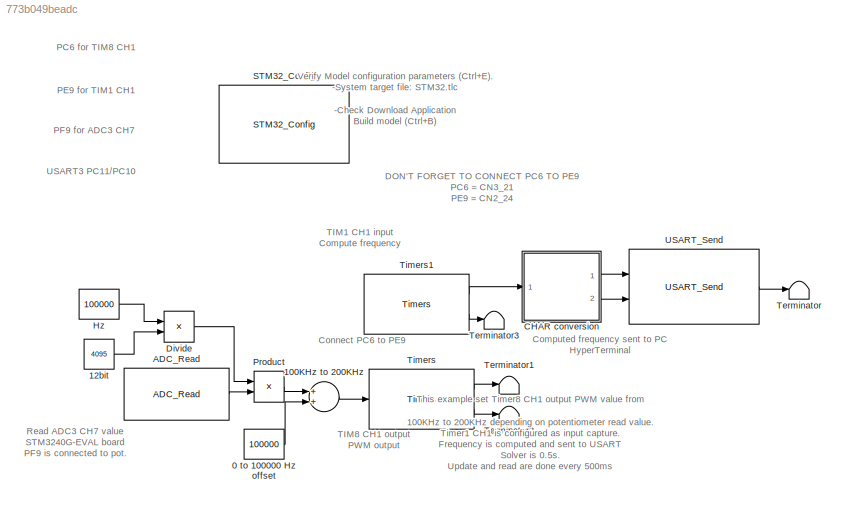
MODEL slx_773b049beadc
KIND model
CONFIG AbsTol = auto
CONFIG EnableMultiTasking = on
CONFIG FixedStep = 0.5
CONFIG MaxStep = auto
CONFIG MinStep = auto
CONFIG RelTol = 1e-3
CONFIG SampleTimeConstraint = Unconstrained
CONFIG Solver = FixedStepDiscrete
CONFIG SolverName = FixedStepDiscrete
CONFIG StartTime = 0.0
CONFIG StopTime = 10.0
BLOCK [Constant] 0 to 100000 Hz offset
  Value = 100000
BLOCK [Sum] 100KHz to 200KHz
  InputSameDT = off
  OutDataTypeStr = Inherit: Inherit via internal rule
  Ports = [2, 1]
  SaturateOnIntegerOverflow = off
BLOCK [Constant] 12bit
  OutDataTypeStr = single
  Value = 4095
BLOCK [Reference] ADC_Read  REF=ADC_Lib/ADC_Read
  Ports = [0, 1]
  SourceBlock = ADC_Lib/ADC_Read
  SourceProductName = Target Support Package - STM32 Adapter
  SourceType = ADC_Read
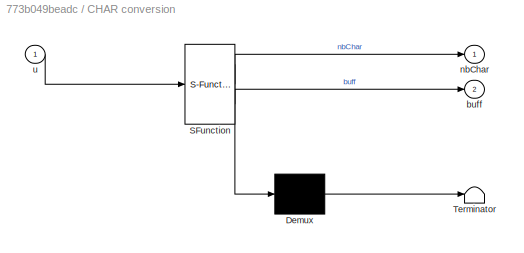
BLOCK [SubSystem] CHAR conversion
  ErrorFcn = Stateflow.Translate.translate
  PermitHierarchicalResolution = ExplicitOnly
  Ports = [1, 2]
  RequestExecContextInheritance = off
  SFBlockType = MATLAB Function
  TreatAsAtomicUnit = on
BLOCK [Demux] CHAR conversion/ Demux 
  Outputs = 1
  Ports = [1, 1]
BLOCK [S-Function] CHAR conversion/ SFunction 
  EnableBusSupport = on
  FunctionName = sf_sfun
  PortCounts = [1 3]
  Ports = [1, 3]
  SFcnIsStateOwnerBlock = off
  SFunctionDeploymentMode = off
  Tag = Stateflow S-Function Tim8PWM_Tim1IC 2
BLOCK [Terminator] CHAR conversion/ Terminator 
BLOCK [Outport] CHAR conversion/buff
  IconDisplay = Port number
  Port = 2
BLOCK [Outport] CHAR conversion/nbChar
  IconDisplay = Port number
BLOCK [Inport] CHAR conversion/u
  IconDisplay = Port number
BLOCK [Product] Divide
  InputSameDT = off
  Inputs = */
  OutDataTypeStr = Inherit: Inherit via internal rule
  Ports = [2, 1]
  RndMeth = Floor
  SaturateOnIntegerOverflow = off
BLOCK [Constant] Hz
  OutDataTypeStr = single
  Value = 100000
BLOCK [Product] Product
  InputSameDT = off
  OutDataTypeStr = Inherit: Inherit via internal rule
  Ports = [2, 1]
  SaturateOnIntegerOverflow = off
BLOCK [Reference] STM32_Config  REF=STM32_Config_Lib/STM32_Config
  Ports = []
  Priority = 0
  SourceBlock = STM32_Config_Lib/STM32_Config
  SourceProductName = Target Support Package - STM32 Adapter
  SourceType = STM32_Config
BLOCK [Terminator] Terminator
BLOCK [Terminator] Terminator1
BLOCK [Terminator] Terminator2
BLOCK [Terminator] Terminator3
BLOCK [Reference] Timers  REF=TIMERS_Lib/Timers
  Ports = [1, 2]
  SourceBlock = TIMERS_Lib/Timers
  SourceProductName = Target Support Package - STM32 Adapter
  SourceType = Timers
BLOCK [Reference] Timers1  REF=TIMERS_Lib/Timers
  Ports = [0, 2]
  SourceBlock = TIMERS_Lib/Timers
  SourceProductName = Target Support Package - STM32 Adapter
  SourceType = Timers
BLOCK [Reference] USART_Send  REF=USART_Lib/USART_Send
  Ports = [2, 1]
  SourceBlock = USART_Lib/USART_Send
  SourceProductName = Target Support Package - STM32 Adapter
  SourceType = USART_Send
ANNOTATION (root): Computed frequency sent to PC HyperTerminal
ANNOTATION (root): Connect PC6 to PE9
ANNOTATION (root): DON'T FORGET TO CONNECT PC6 TO PE9 PC6 = CN3_21 PE9 = CN2_24
ANNOTATION (root): PC6 for TIM8 CH1
ANNOTATION (root): PE9 for TIM1 CH1
ANNOTATION (root): PF9 for ADC3 CH7
ANNOTATION (root): Read ADC3 CH7 value STM3240G-EVAL board PF9 is connected to pot.
ANNOTATION (root): TIM1 CH1 input Compute frequency
ANNOTATION (root): TIM8 CH1 output PWM output
ANNOTATION (root): This example set Timer8 CH1 output PWM value from 100KHz to 200KHz depending on potentiometer read value. Timer1 CH1 is configured as input capture. Frequency is computed and sent to USART Solver is 0.5s. Update and read are done every 500ms
ANNOTATION (root): USART3 PC11/PC10
ANNOTATION (root): Verify Model configuration parameters (Ctrl+E). -System target file: STM32.tlc -Check Download Application Build model (Ctrl+B)
LINE 0 to 100000 Hz offset:1 -> 100KHz to 200KHz:2
LINE 100KHz to 200KHz:1 -> Timers:1
LINE 12bit:1 -> Divide:2
LINE ADC_Read:1 -> Product:2
LINE CHAR conversion:1 -> USART_Send:1
LINE CHAR conversion:2 -> USART_Send:2
LINE Divide:1 -> Product:1
LINE Hz:1 -> Divide:1
LINE Product:1 -> 100KHz to 200KHz:1
LINE Timers1:1 -> CHAR conversion:1
LINE Timers1:2 -> Terminator3:1
LINE Timers:1 -> Terminator1:1
LINE Timers:2 -> Terminator2:1
LINE USART_Send:1 -> Terminator:1
CHART CHAR conversion states=1 transitions=1
  STATE_LABEL 'eML_blk_kernel()'
  STATE_LABEL "SCRIPT:\nfunction [nbChar, buff] = convert(u)\nif coder.target('Sfun')\n    % Executing in MATLAB, Buff is null\n    buff = uint32(0);\n    nbChar = uint16(0);\nelse\n    coder.cinclude('stdio.h');\n    coder.cinclude('getBuffPtr.h');\n    \n    % Executing in the generated code.\n    string = char(zeros(1,15));\n    stringSize = uint16(size(string,2));\n    strLen = int32(0);\n    stringFormat = char(['%6f Hz'...<+202ch>"
